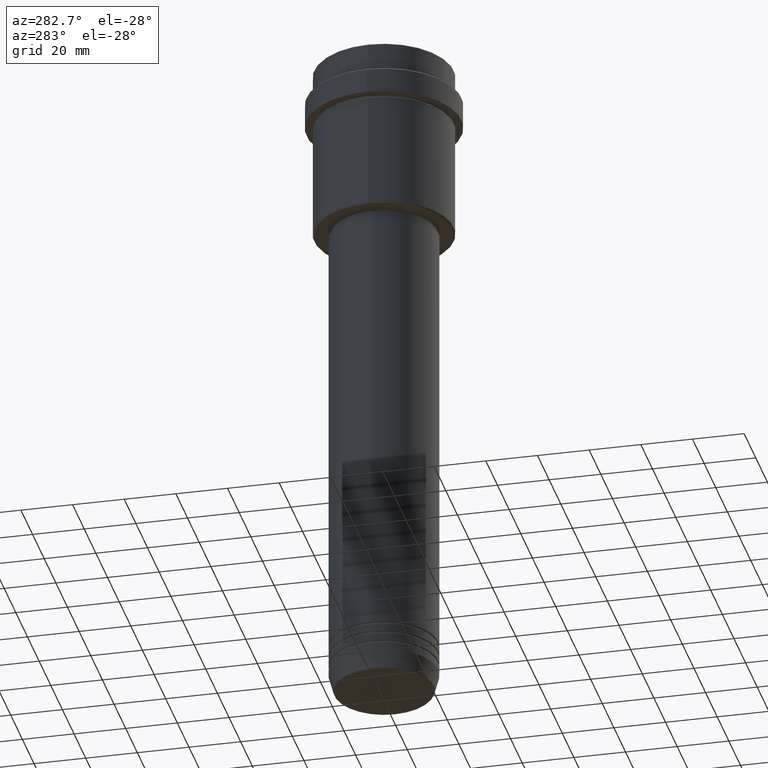
[diagram: clean part render]
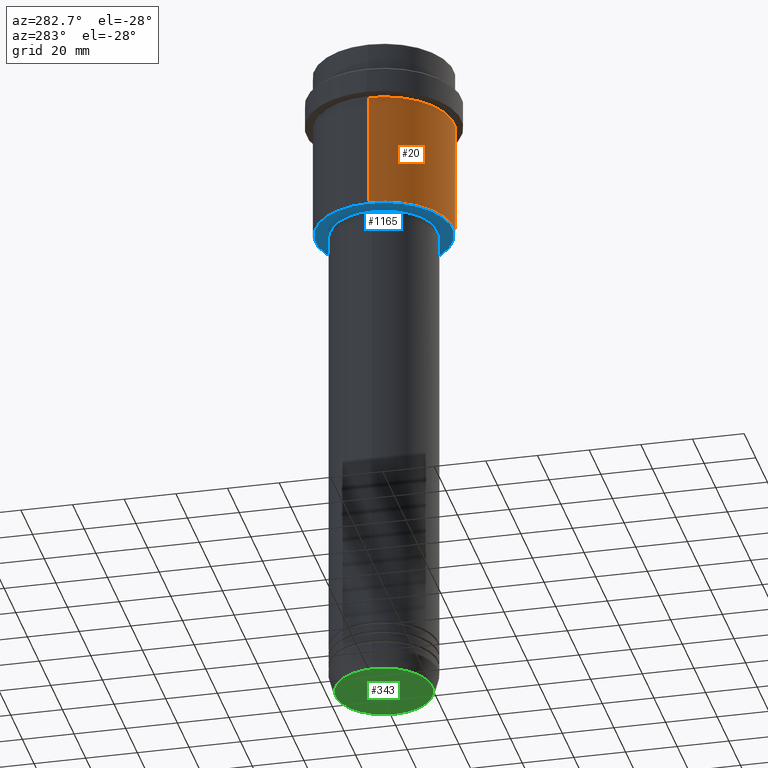
[diagram: same view with three faces highlighted in distinct colors, each labeled with its STEP entity id]
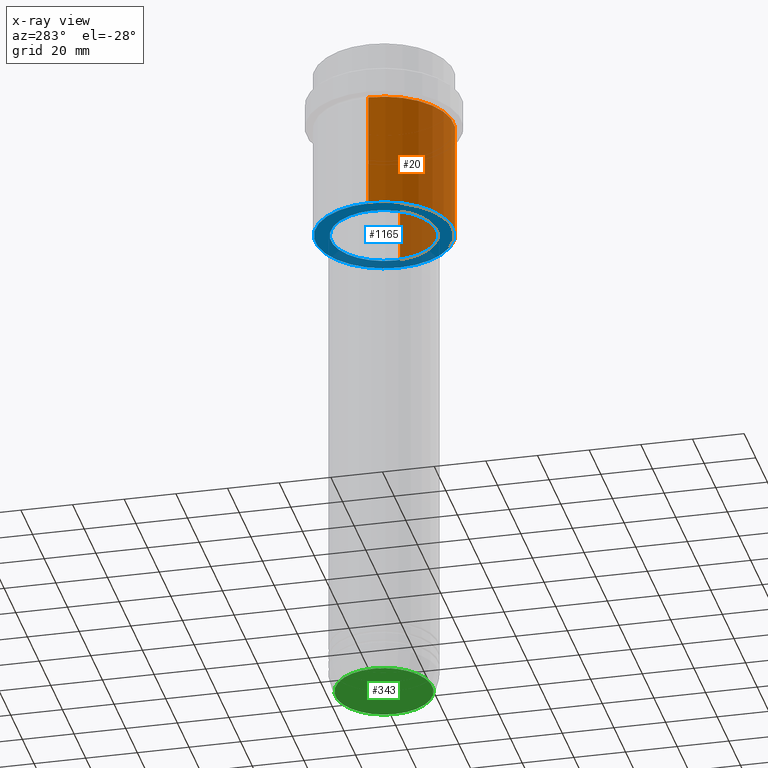
[diagram: x-ray of the same camera — body ghosted, the three highlighted faces saturated]
A machine part, auxiliary view with three faces highlighted in distinct colors.
The next image is the same camera in x-ray (body ghosted, the three faces saturated) — at least one of them is partly hidden behind the body in this view.
Their STEP definitions:

[orange] entity #20 — the highlighted cylindrical surface (partial cylindrical patch) has radius 27 mm, axis along (-0, -0, 1).
#16 = CYLINDRICAL_SURFACE ( 'NONE', #1116, 26.99999999999999645 ) ;
#20 = ADVANCED_FACE ( 'NONE', ( #1217 ), #16, .T. ) ;
#24 = ORIENTED_EDGE ( 'NONE', *, *, #1276, .T. ) ;
#27 = VERTEX_POINT ( 'NONE', #559 ) ;
#50 = DIRECTION ( 'NONE',  ( -0.000000000000000000, -0.000000000000000000, 1.000000000000000000 ) ) ;
#73 = DIRECTION ( 'NONE',  ( -0.000000000000000000, -0.000000000000000000, 1.000000000000000000 ) ) ;
#131 = EDGE_LOOP ( 'NONE', ( #387, #24, #1065, #610 ) ) ;
#140 = DIRECTION ( 'NONE',  ( -0.000000000000000000, -0.000000000000000000, 1.000000000000000000 ) ) ;
#191 = CARTESIAN_POINT ( 'NONE',  ( -26.99999999999999645, 3.306546357697853339E-15, -23.00000000000000000 ) ) ;
#192 = EDGE_CURVE ( 'NONE', #27, #685, #717, .T. ) ;
#204 = DIRECTION ( 'NONE',  ( -1.000000000000000000, 0.000000000000000000, 0.000000000000000000 ) ) ;
#215 = VERTEX_POINT ( 'NONE', #191 ) ;
#222 = DIRECTION ( 'NONE',  ( -0.000000000000000000, -0.000000000000000000, 1.000000000000000000 ) ) ;
#227 = CARTESIAN_POINT ( 'NONE',  ( 0.000000000000000000, 0.000000000000000000, 0.000000000000000000 ) ) ;
#347 = VECTOR ( 'NONE', #50, 1000.000000000000000 ) ;
#387 = ORIENTED_EDGE ( 'NONE', *, *, #967, .F. ) ;
#396 = CARTESIAN_POINT ( 'NONE',  ( 0.000000000000000000, 0.000000000000000000, -23.00000000000000000 ) ) ;
#483 = CARTESIAN_POINT ( 'NONE',  ( -26.99999999999999645, 3.306546357697853339E-15, 0.000000000000000000 ) ) ;
#538 = DIRECTION ( 'NONE',  ( -0.000000000000000000, -0.000000000000000000, 1.000000000000000000 ) ) ;
#541 = CIRCLE ( 'NONE', #1189, 26.99999999999999645 ) ;
#559 = CARTESIAN_POINT ( 'NONE',  ( 26.99999999999999645, 0.000000000000000000, -67.49999999999998579 ) ) ;
#610 = ORIENTED_EDGE ( 'NONE', *, *, #771, .F. ) ;
#629 = CARTESIAN_POINT ( 'NONE',  ( 26.99999999999999645, 0.000000000000000000, -23.00000000000000000 ) ) ;
#685 = VERTEX_POINT ( 'NONE', #629 ) ;
#717 = LINE ( 'NONE', #1333, #347 ) ;
#771 = EDGE_CURVE ( 'NONE', #215, #685, #541, .T. ) ;
#778 = CIRCLE ( 'NONE', #941, 26.99999999999999645 ) ;
#872 = VERTEX_POINT ( 'NONE', #1092 ) ;
#941 = AXIS2_PLACEMENT_3D ( 'NONE', #1218, #222, #204 ) ;
#947 = DIRECTION ( 'NONE',  ( 1.000000000000000000, 0.000000000000000000, 0.000000000000000000 ) ) ;
#967 = EDGE_CURVE ( 'NONE', #872, #215, #1127, .T. ) ;
#1065 = ORIENTED_EDGE ( 'NONE', *, *, #192, .T. ) ;
#1092 = CARTESIAN_POINT ( 'NONE',  ( -26.99999999999999645, 3.306546357697853339E-15, -67.49999999999998579 ) ) ;
#1116 = AXIS2_PLACEMENT_3D ( 'NONE', #227, #538, #1118 ) ;
#1118 = DIRECTION ( 'NONE',  ( 1.000000000000000000, 0.000000000000000000, 0.000000000000000000 ) ) ;
#1127 = LINE ( 'NONE', #483, #1143 ) ;
#1143 = VECTOR ( 'NONE', #140, 1000.000000000000000 ) ;
#1189 = AXIS2_PLACEMENT_3D ( 'NONE', #396, #73, #947 ) ;
#1217 = FACE_OUTER_BOUND ( 'NONE', #131, .T. ) ;
#1218 = CARTESIAN_POINT ( 'NONE',  ( 0.000000000000000000, 0.000000000000000000, -67.49999999999998579 ) ) ;
#1276 = EDGE_CURVE ( 'NONE', #872, #27, #778, .T. ) ;
#1333 = CARTESIAN_POINT ( 'NONE',  ( 26.99999999999999645, 0.000000000000000000, 0.000000000000000000 ) ) ;

[blue] entity #1165 — the highlighted planar face has unit normal (0, 0, -1).
#56 = DIRECTION ( 'NONE',  ( -1.000000000000000000, 0.000000000000000000, 0.000000000000000000 ) ) ;
#67 = DIRECTION ( 'NONE',  ( 0.000000000000000000, 0.000000000000000000, -1.000000000000000000 ) ) ;
#75 = DIRECTION ( 'NONE',  ( -1.000000000000000000, 0.000000000000000000, -0.000000000000000000 ) ) ;
#182 = DIRECTION ( 'NONE',  ( 0.000000000000000000, 0.000000000000000000, -1.000000000000000000 ) ) ;
#246 = ORIENTED_EDGE ( 'NONE', *, *, #739, .T. ) ;
#269 = ORIENTED_EDGE ( 'NONE', *, *, #573, .T. ) ;
#278 = CARTESIAN_POINT ( 'NONE',  ( 20.50000000000000000, 0.000000000000000000, -68.00000000000000000 ) ) ;
#306 = FACE_OUTER_BOUND ( 'NONE', #368, .T. ) ;
#368 = EDGE_LOOP ( 'NONE', ( #1195, #246 ) ) ;
#426 = CARTESIAN_POINT ( 'NONE',  ( -20.50000000000000000, 2.510525938252074481E-15, -68.00000000000000000 ) ) ;
#459 = CARTESIAN_POINT ( 'NONE',  ( 0.000000000000000000, 0.000000000000000000, -68.00000000000000000 ) ) ;
#502 = VERTEX_POINT ( 'NONE', #426 ) ;
#516 = PLANE ( 'NONE',  #734 ) ;
#567 = CARTESIAN_POINT ( 'NONE',  ( 0.000000000000000000, 0.000000000000000000, -68.00000000000000000 ) ) ;
#573 = EDGE_CURVE ( 'NONE', #1155, #502, #753, .T. ) ;
#574 = CARTESIAN_POINT ( 'NONE',  ( 0.000000000000000000, 0.000000000000000000, -68.00000000000000000 ) ) ;
#582 = DIRECTION ( 'NONE',  ( -0.000000000000000000, -0.000000000000000000, 1.000000000000000000 ) ) ;
#587 = AXIS2_PLACEMENT_3D ( 'NONE', #459, #582, #1364 ) ;
#631 = EDGE_CURVE ( 'NONE', #927, #1391, #1054, .T. ) ;
#706 = AXIS2_PLACEMENT_3D ( 'NONE', #574, #1238, #1346 ) ;
#734 = AXIS2_PLACEMENT_3D ( 'NONE', #1273, #182, #75 ) ;
#739 = EDGE_CURVE ( 'NONE', #1391, #927, #962, .T. ) ;
#753 = CIRCLE ( 'NONE', #1317, 20.50000000000000000 ) ;
#837 = EDGE_LOOP ( 'NONE', ( #269, #1288 ) ) ;
#927 = VERTEX_POINT ( 'NONE', #1213 ) ;
#962 = CIRCLE ( 'NONE', #1167, 26.49999999999996803 ) ;
#963 = CIRCLE ( 'NONE', #587, 20.50000000000000000 ) ;
#1035 = CARTESIAN_POINT ( 'NONE',  ( -26.49999999999996803, 3.275930187719167580E-15, -68.00000000000000000 ) ) ;
#1040 = DIRECTION ( 'NONE',  ( 1.000000000000000000, 0.000000000000000000, 0.000000000000000000 ) ) ;
#1047 = CARTESIAN_POINT ( 'NONE',  ( 0.000000000000000000, 0.000000000000000000, -68.00000000000000000 ) ) ;
#1054 = CIRCLE ( 'NONE', #706, 26.49999999999996803 ) ;
#1055 = EDGE_CURVE ( 'NONE', #502, #1155, #963, .T. ) ;
#1115 = DIRECTION ( 'NONE',  ( -0.000000000000000000, -0.000000000000000000, 1.000000000000000000 ) ) ;
#1155 = VERTEX_POINT ( 'NONE', #278 ) ;
#1165 = ADVANCED_FACE ( 'NONE', ( #306, #1266 ), #516, .T. ) ;
#1167 = AXIS2_PLACEMENT_3D ( 'NONE', #1047, #67, #56 ) ;
#1195 = ORIENTED_EDGE ( 'NONE', *, *, #631, .T. ) ;
#1213 = CARTESIAN_POINT ( 'NONE',  ( 26.49999999999996803, 0.000000000000000000, -68.00000000000000000 ) ) ;
#1238 = DIRECTION ( 'NONE',  ( 0.000000000000000000, 0.000000000000000000, -1.000000000000000000 ) ) ;
#1266 = FACE_BOUND ( 'NONE', #837, .T. ) ;
#1273 = CARTESIAN_POINT ( 'NONE',  ( 0.000000000000000000, 27.00000000000000000, -68.00000000000000000 ) ) ;
#1288 = ORIENTED_EDGE ( 'NONE', *, *, #1055, .T. ) ;
#1317 = AXIS2_PLACEMENT_3D ( 'NONE', #567, #1115, #1040 ) ;
#1346 = DIRECTION ( 'NONE',  ( -1.000000000000000000, 0.000000000000000000, 0.000000000000000000 ) ) ;
#1364 = DIRECTION ( 'NONE',  ( 1.000000000000000000, 0.000000000000000000, 0.000000000000000000 ) ) ;
#1391 = VERTEX_POINT ( 'NONE', #1035 ) ;

[green] entity #343 — the highlighted planar face has unit normal (0, -0, 1).
#130 = EDGE_CURVE ( 'NONE', #998, #491, #609, .T. ) ;
#160 = CARTESIAN_POINT ( 'NONE',  ( 0.000000000000000000, 0.000000000000000000, -263.0000000000000000 ) ) ;
#202 = DIRECTION ( 'NONE',  ( 1.000000000000000000, 0.000000000000000000, 0.000000000000000000 ) ) ;
#230 = DIRECTION ( 'NONE',  ( 0.000000000000000000, 0.000000000000000000, -1.000000000000000000 ) ) ;
#237 = CIRCLE ( 'NONE', #1141, 18.74069215899265473 ) ;
#279 = EDGE_LOOP ( 'NONE', ( #1257, #431 ) ) ;
#303 = PLANE ( 'NONE',  #1162 ) ;
#343 = ADVANCED_FACE ( 'NONE', ( #1291 ), #303, .F. ) ;
#431 = ORIENTED_EDGE ( 'NONE', *, *, #130, .T. ) ;
#435 = EDGE_CURVE ( 'NONE', #491, #998, #237, .T. ) ;
#450 = CARTESIAN_POINT ( 'NONE',  ( 18.74069215899265473, 0.000000000000000000, -263.0000000000000000 ) ) ;
#491 = VERTEX_POINT ( 'NONE', #450 ) ;
#609 = CIRCLE ( 'NONE', #931, 18.74069215899265473 ) ;
#702 = CARTESIAN_POINT ( 'NONE',  ( -18.74069215899265473, 2.324645815916091924E-15, -263.0000000000000000 ) ) ;
#752 = CARTESIAN_POINT ( 'NONE',  ( 0.000000000000000000, 0.000000000000000000, -263.0000000000000000 ) ) ;
#765 = DIRECTION ( 'NONE',  ( 0.000000000000000000, -0.000000000000000000, 1.000000000000000000 ) ) ;
#772 = DIRECTION ( 'NONE',  ( 1.000000000000000000, 0.000000000000000000, 0.000000000000000000 ) ) ;
#802 = DIRECTION ( 'NONE',  ( 1.000000000000000000, 0.000000000000000000, 0.000000000000000000 ) ) ;
#922 = DIRECTION ( 'NONE',  ( 0.000000000000000000, 0.000000000000000000, -1.000000000000000000 ) ) ;
#931 = AXIS2_PLACEMENT_3D ( 'NONE', #160, #922, #802 ) ;
#998 = VERTEX_POINT ( 'NONE', #702 ) ;
#1141 = AXIS2_PLACEMENT_3D ( 'NONE', #1196, #230, #772 ) ;
#1162 = AXIS2_PLACEMENT_3D ( 'NONE', #752, #765, #202 ) ;
#1196 = CARTESIAN_POINT ( 'NONE',  ( 0.000000000000000000, 0.000000000000000000, -263.0000000000000000 ) ) ;
#1257 = ORIENTED_EDGE ( 'NONE', *, *, #435, .T. ) ;
#1291 = FACE_OUTER_BOUND ( 'NONE', #279, .T. ) ;